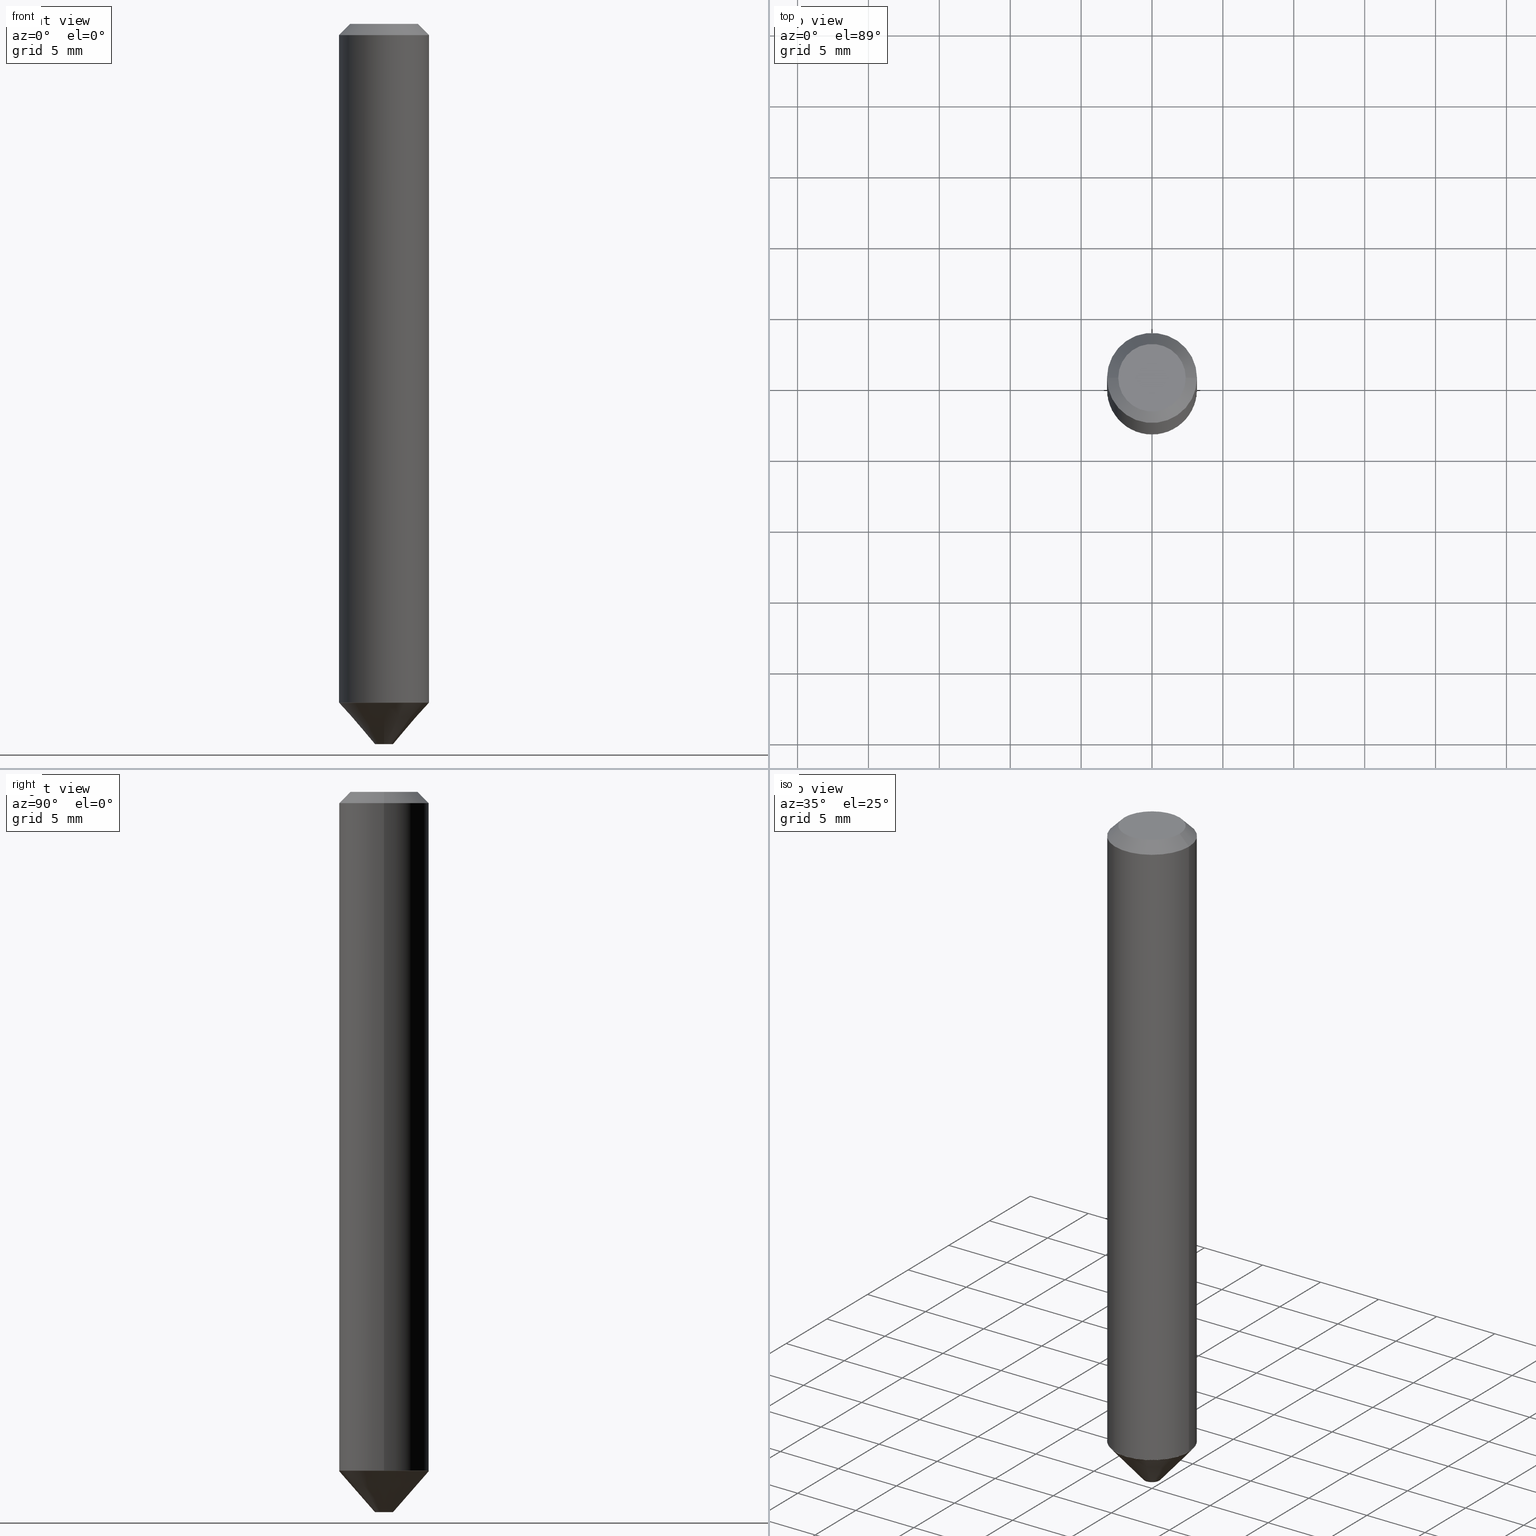
[diagram: canonical four-view strip — front | top / right | iso, engineering-drawing reading convention]
A machine part, canonical four-view strip (front | top / right | iso — engineering-drawing reading convention). The complete STEP part file that produces these views, byte-faithful:
ISO-10303-21;
HEADER;
FILE_DESCRIPTION (( 'STEP AP203' ),
    '1' );
FILE_NAME ('74155.STEP',
    '2025-06-20T12:14:34',
    ( '' ),
    ( '' ),
    'SwSTEP 2.0',
    'SolidWorks 2024',
    '' );
FILE_SCHEMA (( 'CONFIG_CONTROL_DESIGN' ));
ENDSEC;

DATA;
#1 = DIRECTION ( 'NONE',  ( 6.982962677686266711E-15, 1.000000000000000000, -4.388510833195594116E-15 ) ) ;
#2 = DIRECTION ( 'NONE',  ( -2.456799184199791679E-29, 3.475255592641091320E-15, 1.000000000000000000 ) ) ;
#3 = APPLICATION_CONTEXT ( 'configuration controlled 3d designs of mechanical parts and assemblies' ) ;
#4 = CARTESIAN_POINT ( 'NONE',  ( -8.558471252219543168E-16, -0.1245000000000068413, -1.885043996145981282 ) ) ;
#5 = CIRCLE ( 'NONE', #374, 0.1250000000000002498 ) ;
#6 = ORIENTED_EDGE ( 'NONE', *, *, #46, .F. ) ;
#7 = DIRECTION ( 'NONE',  ( -2.445468806185136597E-29, 3.491481338843145583E-15, 1.000000000000000000 ) ) ;
#8 = ORIENTED_EDGE ( 'NONE', *, *, #135, .F. ) ;
#9 = LINE ( 'NONE', #134, #316 ) ;
#10 = ORIENTED_EDGE ( 'NONE', *, *, #189, .F. ) ;
#11 =( NAMED_UNIT ( * ) SI_UNIT ( $, .STERADIAN. ) SOLID_ANGLE_UNIT ( ) );
#12 = CARTESIAN_POINT ( 'NONE',  ( -0.1245000000000004020, -5.694321002246567410E-15, -1.885043996145981282 ) ) ;
#13 = DIRECTION ( 'NONE',  ( -2.445468806185136877E-29, 3.491481338843145188E-15, 1.000000000000000000 ) ) ;
#14 = PERSON_AND_ORGANIZATION ( #416, #78 ) ;
#15 = VECTOR ( 'NONE', #203, 39.37007874015748143 ) ;
#16 = CARTESIAN_POINT ( 'NONE',  ( 4.609816290861572078E-29, -6.581595935442004523E-15, -1.885043996145981282 ) ) ;
#17 = DIRECTION ( 'NONE',  ( 2.456799184199791959E-29, -3.475255592641091320E-15, -1.000000000000000000 ) ) ;
#18 = DATE_TIME_ROLE ( 'creation_date' ) ;
#19 = DIRECTION ( 'NONE',  ( 1.000000000000000000, -6.982962677686264344E-15, 0.000000000000000000 ) ) ;
#20 = CARTESIAN_POINT ( 'NONE',  ( -8.728703347107393598E-16, -0.1250000000000068834, -1.885543996145981227 ) ) ;
#21 = CONICAL_SURFACE ( 'NONE', #208, 0.1250000000000003053, 0.7180921986036510329 ) ;
#22 = PERSON_AND_ORGANIZATION_ROLE ( 'classification_officer' ) ;
#23 = VERTEX_POINT ( 'NONE', #366 ) ;
#24 = AXIS2_PLACEMENT_3D ( 'NONE', #42, #17, #278 ) ;
#25 = CARTESIAN_POINT ( 'NONE',  ( -9.358861080966640236E-47, 1.336197326842803670E-32, 3.827021247335477232E-18 ) ) ;
#26 = CARTESIAN_POINT ( 'NONE',  ( 4.609816290861573199E-29, -6.581595935442006101E-15, -1.885043996145981948 ) ) ;
#27 = VECTOR ( 'NONE', #188, 39.37007874015748143 ) ;
#28 = PLANE ( 'NONE',  #200 ) ;
#29 = EDGE_CURVE ( 'NONE', #251, #230, #337, .T. ) ;
#30 = ORIENTED_EDGE ( 'NONE', *, *, #69, .F. ) ;
#31 = EDGE_LOOP ( 'NONE', ( #402, #120 ) ) ;
#32 = CARTESIAN_POINT ( 'NONE',  ( -4.679430540483320118E-47, 6.680986634214018350E-33, 1.913510623667738616E-18 ) ) ;
#33 = VERTEX_POINT ( 'NONE', #292 ) ;
#34 = DIRECTION ( 'NONE',  ( 6.982962677686265922E-15, 1.000000000000000000, -4.370956789862810105E-15 ) ) ;
#35 = APPLICATION_PROTOCOL_DEFINITION ( 'international standard', 'config_control_design', 1994, #311 ) ;
#36 = CONICAL_SURFACE ( 'NONE', #113, 0.1250000000000000278, 0.7853981633974450594 ) ;
#37 = DIRECTION ( 'NONE',  ( -2.445468806185136877E-29, 3.491481338843145188E-15, 1.000000000000000000 ) ) ;
#38 = ORIENTED_EDGE ( 'NONE', *, *, #128, .T. ) ;
#39 = PERSON_AND_ORGANIZATION_ROLE ( 'creator' ) ;
#40 = CARTESIAN_POINT ( 'NONE',  ( 0.1250000000000000278, -9.666710415602907432E-16, -0.03125000000000022898 ) ) ;
#41 = EDGE_CURVE ( 'NONE', #96, #251, #171, .T. ) ;
#42 = CARTESIAN_POINT ( 'NONE',  ( 4.609816290861573199E-29, -6.581595935442006101E-15, -1.885043996145981948 ) ) ;
#43 = ORIENTED_EDGE ( 'NONE', *, *, #69, .T. ) ;
#44 = APPROVAL_DATE_TIME ( #338, #51 ) ;
#45 = FACE_OUTER_BOUND ( 'NONE', #266, .T. ) ;
#46 = EDGE_CURVE ( 'NONE', #198, #315, #317, .T. ) ;
#47 = PRODUCT ( '74155', '74155', '', ( #267 ) ) ;
#48 = CARTESIAN_POINT ( 'NONE',  ( 0.000000000000000000, 0.000000000000000000, 0.000000000000000000 ) ) ;
#49 = LINE ( 'NONE', #20, #408 ) ;
#50 = UNCERTAINTY_MEASURE_WITH_UNIT (LENGTH_MEASURE( 1.000000000000000082E-05 ), #170, 'distance_accuracy_value', 'NONE');
#51 = APPROVAL ( #140, 'UNSPECIFIED' ) ;
#52 = PERSON_AND_ORGANIZATION ( #416, #78 ) ;
#53 = ORIENTED_EDGE ( 'NONE', *, *, #299, .F. ) ;
#54 = ORIENTED_EDGE ( 'NONE', *, *, #83, .F. ) ;
#55 = CIRCLE ( 'NONE', #228, 0.1245000000000002632 ) ;
#56 = CARTESIAN_POINT ( 'NONE',  ( 7.498156797101894294E-29, -2.445327936373528138E-15, -1.885043996145981504 ) ) ;
#57 = EDGE_LOOP ( 'NONE', ( #186, #300 ) ) ;
#58 = CARTESIAN_POINT ( 'NONE',  ( 4.609816290861572078E-29, -6.581595935442004523E-15, -1.885043996145981282 ) ) ;
#59 = AXIS2_PLACEMENT_3D ( 'NONE', #231, #406, #99 ) ;
#60 = EDGE_CURVE ( 'NONE', #361, #187, #398, .T. ) ;
#61 = PRODUCT_RELATED_PRODUCT_CATEGORY ( 'detail', '', ( #47 ) ) ;
#62 = APPROVAL_PERSON_ORGANIZATION ( #14, #51, #143 ) ;
#63 = ORIENTED_EDGE ( 'NONE', *, *, #41, .F. ) ;
#64 = LOCAL_TIME ( 8, 14, 34.00000000000000000, #274 ) ;
#65 = CIRCLE ( 'NONE', #90, 0.1250000000000000278 ) ;
#66 = ORIENTED_EDGE ( 'NONE', *, *, #211, .F. ) ;
#67 = LINE ( 'NONE', #283, #27 ) ;
#68 = ORIENTED_EDGE ( 'NONE', *, *, #272, .F. ) ;
#69 = EDGE_CURVE ( 'NONE', #23, #315, #268, .T. ) ;
#70 = CC_DESIGN_SECURITY_CLASSIFICATION ( #95, ( #245 ) ) ;
#71 = CARTESIAN_POINT ( 'NONE',  ( -8.575622497213981566E-16, -0.1250000000000069944, -1.885543996145981227 ) ) ;
#72 = ORIENTED_EDGE ( 'NONE', *, *, #205, .T. ) ;
#73 = DATE_AND_TIME ( #403, #159 ) ;
#74 = EDGE_CURVE ( 'NONE', #162, #315, #139, .T. ) ;
#75 = LINE ( 'NONE', #227, #119 ) ;
#76 = LINE ( 'NONE', #104, #295 ) ;
#77 = SHAPE_DEFINITION_REPRESENTATION ( #214, #346 ) ;
#78 = ORGANIZATION ( 'UNSPECIFIED', 'UNSPECIFIED', '' ) ;
#79 = CIRCLE ( 'NONE', #132, 0.1250000000000002498 ) ;
#80 = DIRECTION ( 'NONE',  ( 6.982962677686265133E-15, 1.000000000000000000, 0.000000000000000000 ) ) ;
#81 = CC_DESIGN_DATE_AND_TIME_ASSIGNMENT ( #118, #312, ( #95 ) ) ;
#82 = FACE_OUTER_BOUND ( 'NONE', #91, .T. ) ;
#83 = EDGE_CURVE ( 'NONE', #23, #285, #356, .T. ) ;
#84 = VECTOR ( 'NONE', #365, 39.37007874015748143 ) ;
#85 = ORIENTED_EDGE ( 'NONE', *, *, #265, .F. ) ;
#86 = DIRECTION ( 'NONE',  ( -2.445468806185136597E-29, 3.491481338843145583E-15, 1.000000000000000000 ) ) ;
#87 = VERTEX_POINT ( 'NONE', #307 ) ;
#88 = CARTESIAN_POINT ( 'NONE',  ( 4.609816290861573199E-29, -6.581595935442006101E-15, -1.885043996145981948 ) ) ;
#89 = FACE_OUTER_BOUND ( 'NONE', #284, .T. ) ;
#90 = AXIS2_PLACEMENT_3D ( 'NONE', #306, #378, #179 ) ;
#91 = EDGE_LOOP ( 'NONE', ( #370, #386, #255, #100 ) ) ;
#92 = DIRECTION ( 'NONE',  ( 1.000000000000000000, -6.982962677686265922E-15, 0.000000000000000000 ) ) ;
#93 = CC_DESIGN_PERSON_AND_ORGANIZATION_ASSIGNMENT ( #276, #247, ( #245 ) ) ;
#94 = ORIENTED_EDGE ( 'NONE', *, *, #182, .T. ) ;
#95 = SECURITY_CLASSIFICATION ( '', '', #242 ) ;
#96 = VERTEX_POINT ( 'NONE', #12 ) ;
#97 = APPLICATION_PROTOCOL_DEFINITION ( 'international standard', 'config_control_design', 1994, #3 ) ;
#98 = ORIENTED_EDGE ( 'NONE', *, *, #335, .T. ) ;
#99 = DIRECTION ( 'NONE',  ( 1.000000000000000000, -6.982962677686266711E-15, 4.876176775795935793E-29 ) ) ;
#100 = ORIENTED_EDGE ( 'NONE', *, *, #397, .F. ) ;
#101 = DIRECTION ( 'NONE',  ( 0.000000000000000000, 0.000000000000000000, 1.000000000000000000 ) ) ;
#102 = ADVANCED_FACE ( 'NONE', ( #275 ), #138, .T. ) ;
#103 = FACE_OUTER_BOUND ( 'NONE', #383, .T. ) ;
#104 = CARTESIAN_POINT ( 'NONE',  ( -0.1250000000000002498, -5.691671775072456998E-15, -1.884543996145982003 ) ) ;
#105 = FACE_OUTER_BOUND ( 'NONE', #201, .T. ) ;
#106 = CARTESIAN_POINT ( 'NONE',  ( 4.609816290861573199E-29, -6.581595935442006101E-15, -1.885043996145981948 ) ) ;
#107 = FACE_OUTER_BOUND ( 'NONE', #183, .T. ) ;
#108 = DIRECTION ( 'NONE',  ( 1.000000000000000000, -6.982962677686266711E-15, 4.875989565238656407E-29 ) ) ;
#109 = CLOSED_SHELL ( 'NONE', ( #150, #102, #240, #322, #308, #368, #314, #354 ) ) ;
#110 = ADVANCED_FACE ( 'NONE', ( #45 ), #185, .T. ) ;
#111 = CARTESIAN_POINT ( 'NONE',  ( 4.611044690453673152E-29, -6.583333563238326650E-15, -1.885543996145981671 ) ) ;
#112 = AXIS2_PLACEMENT_3D ( 'NONE', #269, #101, #239 ) ;
#113 = AXIS2_PLACEMENT_3D ( 'NONE', #415, #121, #389 ) ;
#114 = VECTOR ( 'NONE', #352, 39.37007874015748143 ) ;
#115 = DIMENSIONAL_EXPONENTS ( 1.000000000000000000, 0.000000000000000000, 0.000000000000000000, 0.000000000000000000, 0.000000000000000000, 0.000000000000000000, 0.000000000000000000 ) ;
#116 = DIRECTION ( 'NONE',  ( -0.7071067811868855246, 7.493145998871575317E-15, 0.7071067811862095098 ) ) ;
#117 = CIRCLE ( 'NONE', #385, 0.02500000000000041772 ) ;
#118 = DATE_AND_TIME ( #181, #344 ) ;
#119 = VECTOR ( 'NONE', #37, 39.37007874015748143 ) ;
#120 = ORIENTED_EDGE ( 'NONE', *, *, #83, .T. ) ;
#121 = DIRECTION ( 'NONE',  ( 2.445468806185136597E-29, -3.491481338843145583E-15, -1.000000000000000000 ) ) ;
#122 = ORIENTED_EDGE ( 'NONE', *, *, #182, .F. ) ;
#123 = DIRECTION ( 'NONE',  ( 2.456799184199791959E-29, -3.475255592641091320E-15, -1.000000000000000000 ) ) ;
#124 = CC_DESIGN_APPROVAL ( #343, ( #277 ) ) ;
#125 = ORIENTED_EDGE ( 'NONE', *, *, #189, .T. ) ;
#126 = DIRECTION ( 'NONE',  ( -2.445468806185136597E-29, 3.491481338843145583E-15, 1.000000000000000000 ) ) ;
#127 = CARTESIAN_POINT ( 'NONE',  ( 8.693788533719880578E-16, 0.1244999999999936990, -1.885043996145982392 ) ) ;
#128 = EDGE_CURVE ( 'NONE', #315, #198, #155, .T. ) ;
#129 = DIRECTION ( 'NONE',  ( 1.000000000000000000, -6.982962677686267499E-15, 0.000000000000000000 ) ) ;
#130 = CC_DESIGN_DATE_AND_TIME_ASSIGNMENT ( #73, #18, ( #277 ) ) ;
#131 = ORIENTED_EDGE ( 'NONE', *, *, #74, .T. ) ;
#132 = AXIS2_PLACEMENT_3D ( 'NONE', #339, #310, #19 ) ;
#133 = DIRECTION ( 'NONE',  ( 2.456799184199791959E-29, -3.475255592641091320E-15, -1.000000000000000000 ) ) ;
#134 = CARTESIAN_POINT ( 'NONE',  ( -0.1250000000000000278, 7.637615428719344354E-16, -0.03125000000000022898 ) ) ;
#135 = EDGE_CURVE ( 'NONE', #230, #361, #79, .T. ) ;
#136 = ORIENTED_EDGE ( 'NONE', *, *, #272, .T. ) ;
#137 = PERSON_AND_ORGANIZATION ( #416, #78 ) ;
#138 = CYLINDRICAL_SURFACE ( 'NONE', #331, 0.1250000000000001388 ) ;
#139 = LINE ( 'NONE', #127, #114 ) ;
#140 = APPROVAL_STATUS ( 'not_yet_approved' ) ;
#141 = CARTESIAN_POINT ( 'NONE',  ( 7.642090019328607041E-31, -1.091087918388490883E-16, -0.03125000000000022898 ) ) ;
#142 = COORDINATED_UNIVERSAL_TIME_OFFSET ( 5, 0, .BEHIND. ) ;
#143 = APPROVAL_ROLE ( '' ) ;
#144 = DIRECTION ( 'NONE',  ( 6.982962677686266711E-15, 1.000000000000000000, -4.388510833195594116E-15 ) ) ;
#145 = APPROVAL ( #152, 'UNSPECIFIED' ) ;
#146 = CARTESIAN_POINT ( 'NONE',  ( 4.890937612370273194E-29, -6.982962677686291165E-15, -2.000000000000000000 ) ) ;
#147 = CONICAL_SURFACE ( 'NONE', #353, 0.1250000000000002498, 0.7853981633979263410 ) ;
#148 = CARTESIAN_POINT ( 'NONE',  ( 8.693788533719880578E-16, 0.1244999999999936990, -1.885043996145982392 ) ) ;
#149 = AXIS2_PLACEMENT_3D ( 'NONE', #146, #237, #177 ) ;
#150 = ADVANCED_FACE ( 'NONE', ( #82 ), #411, .T. ) ;
#151 = ADVANCED_FACE ( 'NONE', ( #107 ), #21, .T. ) ;
#152 = APPROVAL_STATUS ( 'not_yet_approved' ) ;
#153 = AXIS2_PLACEMENT_3D ( 'NONE', #288, #161, #1 ) ;
#154 = CIRCLE ( 'NONE', #257, 0.1245000000000004020 ) ;
#155 = CIRCLE ( 'NONE', #209, 0.1250000000000003053 ) ;
#156 = LOCAL_TIME ( 8, 14, 34.00000000000000000, #212 ) ;
#157 = ORIENTED_EDGE ( 'NONE', *, *, #205, .F. ) ;
#158 = ADVANCED_FACE ( 'NONE', ( #348 ), #341, .F. ) ;
#159 = LOCAL_TIME ( 8, 14, 34.00000000000000000, #301 ) ;
#160 = ORIENTED_EDGE ( 'NONE', *, *, #253, .F. ) ;
#161 = DIRECTION ( 'NONE',  ( 2.456799184199791959E-29, -3.475255592641091320E-15, -1.000000000000000000 ) ) ;
#162 = VERTEX_POINT ( 'NONE', #148 ) ;
#163 = DIRECTION ( 'NONE',  ( 2.438088387897960049E-29, -3.491481338843145188E-15, -1.000000000000000000 ) ) ;
#164 = CARTESIAN_POINT ( 'NONE',  ( 0.1250000000000002498, -7.452720529483370303E-15, -1.884543996145982003 ) ) ;
#165 = DIRECTION ( 'NONE',  ( -2.445468806185136597E-29, 3.491481338843145583E-15, 1.000000000000000000 ) ) ;
#166 = AXIS2_PLACEMENT_3D ( 'NONE', #111, #241, #233 ) ;
#167 = CARTESIAN_POINT ( 'NONE',  ( -0.1250000000000001388, 8.881784197001262184E-16, -6.148668862818638533E-30 ) ) ;
#168 = ADVANCED_FACE ( 'NONE', ( #375 ), #355, .T. ) ;
#169 = CARTESIAN_POINT ( 'NONE',  ( 4.611044690453673152E-29, -6.583333563238326650E-15, -1.885543996145981671 ) ) ;
#170 =( CONVERSION_BASED_UNIT ( 'INCH', #176 ) LENGTH_UNIT ( ) NAMED_UNIT ( #115 ) );
#171 = CIRCLE ( 'NONE', #246, 0.1245000000000004020 ) ;
#172 = DIRECTION ( 'NONE',  ( 6.982962677686265922E-15, 1.000000000000000000, -4.370956789862810105E-15 ) ) ;
#173 = ORIENTED_EDGE ( 'NONE', *, *, #342, .F. ) ;
#174 = PERSON_AND_ORGANIZATION ( #416, #78 ) ;
#175 = CARTESIAN_POINT ( 'NONE',  ( 4.611044690453673152E-29, -6.583333563238326650E-15, -1.885543996145981671 ) ) ;
#176 = LENGTH_MEASURE_WITH_UNIT ( LENGTH_MEASURE( 0.02539999999999999897 ), #326 );
#177 = DIRECTION ( 'NONE',  ( -6.982962677686265922E-15, -1.000000000000000000, 3.475255592641091320E-15 ) ) ;
#178 = DIRECTION ( 'NONE',  ( 2.456799184199791959E-29, -3.475255592641091320E-15, -1.000000000000000000 ) ) ;
#179 = DIRECTION ( 'NONE',  ( 1.000000000000000000, -6.982962677686265922E-15, 0.000000000000000000 ) ) ;
#180 = CALENDAR_DATE ( 2025, 20, 6 ) ;
#181 = CALENDAR_DATE ( 2025, 20, 6 ) ;
#182 = EDGE_CURVE ( 'NONE', #96, #361, #76, .T. ) ;
#183 = EDGE_LOOP ( 'NONE', ( #30, #217, #125, #289 ) ) ;
#184 = DIRECTION ( 'NONE',  ( -6.982962677686265922E-15, -1.000000000000000000, 3.475255592641091320E-15 ) ) ;
#185 = CONICAL_SURFACE ( 'NONE', #24, 0.1245000000000002632, 0.7853981633975849475 ) ;
#186 = ORIENTED_EDGE ( 'NONE', *, *, #384, .T. ) ;
#187 = VERTEX_POINT ( 'NONE', #207 ) ;
#188 = DIRECTION ( 'NONE',  ( -4.851104656541626918E-15, -0.7071067811866466046, -0.7071067811864484298 ) ) ;
#189 = EDGE_CURVE ( 'NONE', #285, #198, #49, .T. ) ;
#190 = ORIENTED_EDGE ( 'NONE', *, *, #60, .F. ) ;
#191 = MANIFOLD_SOLID_BREP ( 'Body-Move/Copy2[2]', #109 ) ;
#192 = AXIS2_PLACEMENT_3D ( 'NONE', #388, #7, #363 ) ;
#193 = ORIENTED_EDGE ( 'NONE', *, *, #29, .T. ) ;
#194 = FACE_OUTER_BOUND ( 'NONE', #57, .T. ) ;
#195 = EDGE_LOOP ( 'NONE', ( #297, #53 ) ) ;
#196 = APPROVAL_STATUS ( 'not_yet_approved' ) ;
#197 = AXIS2_PLACEMENT_3D ( 'NONE', #26, #381, #144 ) ;
#198 = VERTEX_POINT ( 'NONE', #71 ) ;
#199 = PERSON_AND_ORGANIZATION_ROLE ( 'design_owner' ) ;
#200 = AXIS2_PLACEMENT_3D ( 'NONE', #88, #2, #184 ) ;
#201 = EDGE_LOOP ( 'NONE', ( #190, #72, #393, #173 ) ) ;
#202 = CARTESIAN_POINT ( 'NONE',  ( 4.611044690453673152E-29, -6.583333563238326650E-15, -1.885543996145981671 ) ) ;
#203 = DIRECTION ( 'NONE',  ( 0.7071067811868855246, -2.468850131085797074E-15, 0.7071067811862095098 ) ) ;
#204 = CALENDAR_DATE ( 2025, 20, 6 ) ;
#205 = EDGE_CURVE ( 'NONE', #361, #230, #5, .T. ) ;
#206 = DIRECTION ( 'NONE',  ( -0.7071067811865452413, 2.468850131082233000E-15, -0.7071067811865497932 ) ) ;
#207 = CARTESIAN_POINT ( 'NONE',  ( -0.1250000000000000278, -2.456301073605589250E-15, -0.03125000000000022898 ) ) ;
#208 = AXIS2_PLACEMENT_3D ( 'NONE', #175, #302, #213 ) ;
#209 = AXIS2_PLACEMENT_3D ( 'NONE', #202, #178, #172 ) ;
#210 = AXIS2_PLACEMENT_3D ( 'NONE', #262, #391, #92 ) ;
#211 = EDGE_CURVE ( 'NONE', #33, #187, #65, .T. ) ;
#212 = COORDINATED_UNIVERSAL_TIME_OFFSET ( 5, 0, .BEHIND. ) ;
#213 = DIRECTION ( 'NONE',  ( -6.982962677686265922E-15, -1.000000000000000000, 4.370956789862810105E-15 ) ) ;
#214 = PRODUCT_DEFINITION_SHAPE ( 'NONE', 'NONE',  #277 ) ;
#215 = APPROVAL_PERSON_ORGANIZATION ( #349, #145, #351 ) ;
#216 = CC_DESIGN_PERSON_AND_ORGANIZATION_ASSIGNMENT ( #174, #305, ( #245 ) ) ;
#217 = ORIENTED_EDGE ( 'NONE', *, *, #303, .F. ) ;
#218 = VECTOR ( 'NONE', #13, 39.37007874015748143 ) ;
#219 = ORIENTED_EDGE ( 'NONE', *, *, #384, .F. ) ;
#220 = CARTESIAN_POINT ( 'NONE',  ( 4.892240107348993741E-29, -6.981097430743353343E-15, -2.000000000000000000 ) ) ;
#221 = FACE_OUTER_BOUND ( 'NONE', #195, .T. ) ;
#222 = EDGE_LOOP ( 'NONE', ( #98, #94, #8, #232 ) ) ;
#223 = ORIENTED_EDGE ( 'NONE', *, *, #128, .F. ) ;
#224 = CARTESIAN_POINT ( 'NONE',  ( 4.892240107348993741E-29, -6.981097430743353343E-15, -2.000000000000000000 ) ) ;
#225 = CC_DESIGN_PERSON_AND_ORGANIZATION_ASSIGNMENT ( #137, #199, ( #47 ) ) ;
#226 = DIRECTION ( 'NONE',  ( -2.445468806185136597E-29, 3.491481338843145583E-15, 1.000000000000000000 ) ) ;
#227 = CARTESIAN_POINT ( 'NONE',  ( 0.1250000000000001388, -8.728703347107843249E-16, 6.095220969744926748E-30 ) ) ;
#228 = AXIS2_PLACEMENT_3D ( 'NONE', #106, #235, #373 ) ;
#229 = DIRECTION ( 'NONE',  ( 2.456799184199791959E-29, -3.475255592641091320E-15, -1.000000000000000000 ) ) ;
#230 = VERTEX_POINT ( 'NONE', #271 ) ;
#231 = CARTESIAN_POINT ( 'NONE',  ( 0.000000000000000000, 0.000000000000000000, 0.000000000000000000 ) ) ;
#232 = ORIENTED_EDGE ( 'NONE', *, *, #29, .F. ) ;
#233 = DIRECTION ( 'NONE',  ( -6.982962677686265922E-15, -1.000000000000000000, 4.370956789862810105E-15 ) ) ;
#234 = APPROVAL_ROLE ( '' ) ;
#235 = DIRECTION ( 'NONE',  ( 2.456799184199791959E-29, -3.475255592641091320E-15, -1.000000000000000000 ) ) ;
#236 = CONICAL_SURFACE ( 'NONE', #192, 0.1250000000000002498, 0.7853981633979263410 ) ;
#237 = DIRECTION ( 'NONE',  ( -2.456799184199791679E-29, 3.475255592641091320E-15, 1.000000000000000000 ) ) ;
#238 = DESIGN_CONTEXT ( 'detailed design', #311, 'design' ) ;
#239 = DIRECTION ( 'NONE',  ( 1.000000000000000000, 0.000000000000000000, 0.000000000000000000 ) ) ;
#240 = ADVANCED_FACE ( 'NONE', ( #401 ), #147, .T. ) ;
#241 = DIRECTION ( 'NONE',  ( -2.456799184199791959E-29, 3.475255592641091320E-15, 1.000000000000000000 ) ) ;
#242 = SECURITY_CLASSIFICATION_LEVEL ( 'unclassified' ) ;
#243 = VECTOR ( 'NONE', #273, 39.37007874015748143 ) ;
#244 = DIRECTION ( 'NONE',  ( 1.000000000000000000, -6.982962677686264344E-15, 0.000000000000000000 ) ) ;
#245 = PRODUCT_DEFINITION_FORMATION_WITH_SPECIFIED_SOURCE ( 'ANY', '', #47, .NOT_KNOWN. ) ;
#246 = AXIS2_PLACEMENT_3D ( 'NONE', #16, #226, #364 ) ;
#247 = PERSON_AND_ORGANIZATION_ROLE ( 'design_supplier' ) ;
#248 = AXIS2_PLACEMENT_3D ( 'NONE', #25, #126, #256 ) ;
#249 = ADVANCED_FACE ( 'NONE', ( #103 ), #327, .T. ) ;
#250 = CLOSED_SHELL ( 'NONE', ( #168, #110, #249, #309, #158, #151 ) ) ;
#251 = VERTEX_POINT ( 'NONE', #298 ) ;
#252 = CARTESIAN_POINT ( 'NONE',  ( 8.728703347108306705E-16, 0.1249999999999936162, -1.885543996145982337 ) ) ;
#253 = EDGE_CURVE ( 'NONE', #87, #33, #334, .T. ) ;
#254 = LOCAL_TIME ( 8, 14, 34.00000000000000000, #142 ) ;
#255 = ORIENTED_EDGE ( 'NONE', *, *, #211, .T. ) ;
#256 = DIRECTION ( 'NONE',  ( 1.000000000000000000, -6.982962677686266711E-15, 4.875989565238656407E-29 ) ) ;
#257 = AXIS2_PLACEMENT_3D ( 'NONE', #58, #86, #129 ) ;
#258 = EDGE_CURVE ( 'NONE', #162, #325, #55, .T. ) ;
#259 = ORIENTED_EDGE ( 'NONE', *, *, #41, .T. ) ;
#260 = FACE_OUTER_BOUND ( 'NONE', #329, .T. ) ;
#261 = ORIENTED_EDGE ( 'NONE', *, *, #335, .F. ) ;
#262 = CARTESIAN_POINT ( 'NONE',  ( 7.642090019328607041E-31, -1.091087918388490883E-16, -0.03125000000000022898 ) ) ;
#263 = ORIENTED_EDGE ( 'NONE', *, *, #74, .F. ) ;
#264 = CARTESIAN_POINT ( 'NONE',  ( -0.1250000000000002498, -5.691671775072456998E-15, -1.884543996145982003 ) ) ;
#265 = EDGE_CURVE ( 'NONE', #230, #33, #75, .T. ) ;
#266 = EDGE_LOOP ( 'NONE', ( #414, #136, #223, #263 ) ) ;
#267 = MECHANICAL_CONTEXT ( 'NONE', #3, 'mechanical' ) ;
#268 = LINE ( 'NONE', #399, #243 ) ;
#269 = CARTESIAN_POINT ( 'NONE',  ( 0.000000000000000000, 0.000000000000000000, 0.000000000000000000 ) ) ;
#270 = CIRCLE ( 'NONE', #248, 0.09374999999999998612 ) ;
#271 = CARTESIAN_POINT ( 'NONE',  ( 0.1250000000000002498, -7.452720529483370303E-15, -1.884543996145982003 ) ) ;
#272 = EDGE_CURVE ( 'NONE', #325, #198, #67, .T. ) ;
#273 = DIRECTION ( 'NONE',  ( 4.675010081021729684E-15, 0.6579491768388420203, 0.7530623352001414306 ) ) ;
#274 = COORDINATED_UNIVERSAL_TIME_OFFSET ( 5, 0, .BEHIND. ) ;
#275 = FACE_OUTER_BOUND ( 'NONE', #313, .T. ) ;
#276 = PERSON_AND_ORGANIZATION ( #416, #78 ) ;
#277 = PRODUCT_DEFINITION ( 'UNKNOWN', '', #245, #238 ) ;
#278 = DIRECTION ( 'NONE',  ( 6.982962677686266711E-15, 1.000000000000000000, -4.388510833195594116E-15 ) ) ;
#279 = CYLINDRICAL_SURFACE ( 'NONE', #59, 0.1250000000000001388 ) ;
#280 = DIRECTION ( 'NONE',  ( 2.445468806185136597E-29, -3.491481338843145583E-15, -1.000000000000000000 ) ) ;
#281 = APPROVAL_PERSON_ORGANIZATION ( #400, #343, #234 ) ;
#282 = DIRECTION ( 'NONE',  ( -4.594434545680034351E-15, -0.6579491768388366912, 0.7530623352001460935 ) ) ;
#283 = CARTESIAN_POINT ( 'NONE',  ( -8.541320007225113645E-16, -0.1245000000000068413, -1.885043996145981282 ) ) ;
#284 = EDGE_LOOP ( 'NONE', ( #261, #63 ) ) ;
#285 = VERTEX_POINT ( 'NONE', #286 ) ;
#286 = CARTESIAN_POINT ( 'NONE',  ( -5.237222008264251368E-16, -0.02500000000000739825, -2.000000000000000000 ) ) ;
#287 = ORIENTED_EDGE ( 'NONE', *, *, #60, .T. ) ;
#288 = CARTESIAN_POINT ( 'NONE',  ( 4.609816290861573199E-29, -6.581595935442006101E-15, -1.885043996145981948 ) ) ;
#289 = ORIENTED_EDGE ( 'NONE', *, *, #46, .T. ) ;
#290 = DIRECTION ( 'NONE',  ( -1.000000000000000000, 6.982962677686265922E-15, -4.876176775795935793E-29 ) ) ;
#291 = EDGE_CURVE ( 'NONE', #87, #304, #270, .T. ) ;
#292 = CARTESIAN_POINT ( 'NONE',  ( 0.1250000000000000278, -9.819791265496326367E-16, -0.03125000000000022898 ) ) ;
#293 = CARTESIAN_POINT ( 'NONE',  ( -9.358861080966640236E-47, 1.336197326842803670E-32, 3.827021247335477232E-18 ) ) ;
#294 = AXIS2_PLACEMENT_3D ( 'NONE', #141, #280, #407 ) ;
#295 = VECTOR ( 'NONE', #116, 39.37007874015748143 ) ;
#296 = AXIS2_PLACEMENT_3D ( 'NONE', #169, #133, #34 ) ;
#297 = ORIENTED_EDGE ( 'NONE', *, *, #258, .F. ) ;
#298 = CARTESIAN_POINT ( 'NONE',  ( 0.1245000000000004020, -7.450974788813948010E-15, -1.885043996145981282 ) ) ;
#299 = EDGE_CURVE ( 'NONE', #325, #162, #358, .T. ) ;
#300 = ORIENTED_EDGE ( 'NONE', *, *, #291, .T. ) ;
#301 = COORDINATED_UNIVERSAL_TIME_OFFSET ( 5, 0, .BEHIND. ) ;
#302 = DIRECTION ( 'NONE',  ( -2.456799184199791959E-29, 3.475255592641091320E-15, 1.000000000000000000 ) ) ;
#303 = EDGE_CURVE ( 'NONE', #285, #23, #117, .T. ) ;
#304 = VERTEX_POINT ( 'NONE', #394 ) ;
#305 = PERSON_AND_ORGANIZATION_ROLE ( 'creator' ) ;
#306 = CARTESIAN_POINT ( 'NONE',  ( 7.642090019328607041E-31, -1.091087918388490883E-16, -0.03125000000000022898 ) ) ;
#307 = CARTESIAN_POINT ( 'NONE',  ( 0.09374999999999998612, -8.049213644256858150E-16, 3.827021247340580176E-18 ) ) ;
#308 = ADVANCED_FACE ( 'NONE', ( #318 ), #236, .T. ) ;
#309 = ADVANCED_FACE ( 'NONE', ( #221 ), #28, .T. ) ;
#310 = DIRECTION ( 'NONE',  ( -2.445468806185136597E-29, 3.491481338843145583E-15, 1.000000000000000000 ) ) ;
#311 = APPLICATION_CONTEXT ( 'configuration controlled 3d designs of mechanical parts and assemblies' ) ;
#312 = DATE_TIME_ROLE ( 'classification_date' ) ;
#313 = EDGE_LOOP ( 'NONE', ( #323, #287, #66, #85 ) ) ;
#314 = ADVANCED_FACE ( 'NONE', ( #260 ), #36, .T. ) ;
#315 = VERTEX_POINT ( 'NONE', #252 ) ;
#316 = VECTOR ( 'NONE', #206, 39.37007874015748143 ) ;
#317 = CIRCLE ( 'NONE', #296, 0.1250000000000003053 ) ;
#318 = FACE_OUTER_BOUND ( 'NONE', #362, .T. ) ;
#319 = ORIENTED_EDGE ( 'NONE', *, *, #299, .T. ) ;
#320 = DIRECTION ( 'NONE',  ( -1.000000000000000000, 6.982962677686265922E-15, -4.876176775795935793E-29 ) ) ;
#321 = AXIS2_PLACEMENT_3D ( 'NONE', #293, #165, #108 ) ;
#322 = ADVANCED_FACE ( 'NONE', ( #89 ), #360, .T. ) ;
#323 = ORIENTED_EDGE ( 'NONE', *, *, #135, .T. ) ;
#324 = PLANE ( 'NONE',  #410 ) ;
#325 = VERTEX_POINT ( 'NONE', #4 ) ;
#326 =( LENGTH_UNIT ( ) NAMED_UNIT ( * ) SI_UNIT ( $, .METRE. ) );
#327 = CONICAL_SURFACE ( 'NONE', #197, 0.1245000000000002632, 0.7853981633975849475 ) ;
#328 = MANIFOLD_SOLID_BREP ( 'Body-Move/Copy2[1]', #250 ) ;
#329 = EDGE_LOOP ( 'NONE', ( #160, #219, #332, #359 ) ) ;
#330 =( NAMED_UNIT ( * ) PLANE_ANGLE_UNIT ( ) SI_UNIT ( $, .RADIAN. ) );
#331 = AXIS2_PLACEMENT_3D ( 'NONE', #48, #347, #409 ) ;
#332 = ORIENTED_EDGE ( 'NONE', *, *, #397, .T. ) ;
#333 = APPROVAL_DATE_TIME ( #340, #343 ) ;
#334 = LINE ( 'NONE', #40, #84 ) ;
#335 = EDGE_CURVE ( 'NONE', #251, #96, #154, .T. ) ;
#336 = CARTESIAN_POINT ( 'NONE',  ( 4.608593556458481518E-29, -6.579850194772584597E-15, -1.884543996145982003 ) ) ;
#337 = LINE ( 'NONE', #164, #15 ) ;
#338 = DATE_AND_TIME ( #204, #64 ) ;
#339 = CARTESIAN_POINT ( 'NONE',  ( 4.608593556458481518E-29, -6.579850194772584597E-15, -1.884543996145982003 ) ) ;
#340 = DATE_AND_TIME ( #367, #254 ) ;
#341 = PLANE ( 'NONE',  #149 ) ;
#342 = EDGE_CURVE ( 'NONE', #187, #33, #404, .T. ) ;
#343 = APPROVAL ( #196, 'UNSPECIFIED' ) ;
#344 = LOCAL_TIME ( 8, 14, 34.00000000000000000, #376 ) ;
#345 = DATE_AND_TIME ( #180, #156 ) ;
#346 = ADVANCED_BREP_SHAPE_REPRESENTATION ( '74155', ( #328, #191, #112 ), #369 ) ;
#347 = DIRECTION ( 'NONE',  ( -2.445468806185136597E-29, 3.491481338843145583E-15, 1.000000000000000000 ) ) ;
#348 = FACE_OUTER_BOUND ( 'NONE', #31, .T. ) ;
#349 = PERSON_AND_ORGANIZATION ( #416, #78 ) ;
#350 = CIRCLE ( 'NONE', #321, 0.09374999999999998612 ) ;
#351 = APPROVAL_ROLE ( '' ) ;
#352 = DIRECTION ( 'NONE',  ( 4.937700262165222518E-15, 0.7071067811866417196, -0.7071067811864533148 ) ) ;
#353 = AXIS2_PLACEMENT_3D ( 'NONE', #336, #379, #412 ) ;
#354 = ADVANCED_FACE ( 'NONE', ( #194 ), #324, .F. ) ;
#355 = CONICAL_SURFACE ( 'NONE', #166, 0.1250000000000003053, 0.7180921986036510329 ) ;
#356 = CIRCLE ( 'NONE', #396, 0.02500000000000041772 ) ;
#357 = DIRECTION ( 'NONE',  ( 6.982962677686265133E-15, 1.000000000000000000, 0.000000000000000000 ) ) ;
#358 = CIRCLE ( 'NONE', #153, 0.1245000000000002632 ) ;
#359 = ORIENTED_EDGE ( 'NONE', *, *, #342, .T. ) ;
#360 = PLANE ( 'NONE',  #395 ) ;
#361 = VERTEX_POINT ( 'NONE', #264 ) ;
#362 = EDGE_LOOP ( 'NONE', ( #122, #259, #193, #157 ) ) ;
#363 = DIRECTION ( 'NONE',  ( 1.000000000000000000, -6.982962677686264344E-15, 0.000000000000000000 ) ) ;
#364 = DIRECTION ( 'NONE',  ( 1.000000000000000000, -6.982962677686267499E-15, 0.000000000000000000 ) ) ;
#365 = DIRECTION ( 'NONE',  ( 0.7071067811865452413, -7.319954787623248157E-15, -0.7071067811865497932 ) ) ;
#366 = CARTESIAN_POINT ( 'NONE',  ( 5.329070518201253110E-16, 0.02499999999999344066, -2.000000000000000000 ) ) ;
#367 = CALENDAR_DATE ( 2025, 20, 6 ) ;
#368 = ADVANCED_FACE ( 'NONE', ( #105 ), #279, .T. ) ;
#369 =( GEOMETRIC_REPRESENTATION_CONTEXT ( 3 ) GLOBAL_UNCERTAINTY_ASSIGNED_CONTEXT ( ( #50 ) ) GLOBAL_UNIT_ASSIGNED_CONTEXT ( ( #170, #330, #11 ) ) REPRESENTATION_CONTEXT ( 'NONE', 'WORKASPACE' ) );
#370 = ORIENTED_EDGE ( 'NONE', *, *, #291, .F. ) ;
#371 = PERSON_AND_ORGANIZATION ( #416, #78 ) ;
#372 = DIRECTION ( 'NONE',  ( -2.445468806185136597E-29, 3.491481338843145583E-15, 1.000000000000000000 ) ) ;
#373 = DIRECTION ( 'NONE',  ( 6.982962677686266711E-15, 1.000000000000000000, -4.388510833195594116E-15 ) ) ;
#374 = AXIS2_PLACEMENT_3D ( 'NONE', #405, #372, #244 ) ;
#375 = FACE_OUTER_BOUND ( 'NONE', #390, .T. ) ;
#376 = COORDINATED_UNIVERSAL_TIME_OFFSET ( 5, 0, .BEHIND. ) ;
#377 = CC_DESIGN_APPROVAL ( #51, ( #245 ) ) ;
#378 = DIRECTION ( 'NONE',  ( -2.445468806185136597E-29, 3.491481338843145583E-15, 1.000000000000000000 ) ) ;
#379 = DIRECTION ( 'NONE',  ( -2.445468806185136597E-29, 3.491481338843145583E-15, 1.000000000000000000 ) ) ;
#380 = APPROVAL_DATE_TIME ( #345, #145 ) ;
#381 = DIRECTION ( 'NONE',  ( 2.456799184199791959E-29, -3.475255592641091320E-15, -1.000000000000000000 ) ) ;
#382 = CC_DESIGN_APPROVAL ( #145, ( #95 ) ) ;
#383 = EDGE_LOOP ( 'NONE', ( #68, #319, #131, #6 ) ) ;
#384 = EDGE_CURVE ( 'NONE', #304, #87, #350, .T. ) ;
#385 = AXIS2_PLACEMENT_3D ( 'NONE', #220, #123, #357 ) ;
#386 = ORIENTED_EDGE ( 'NONE', *, *, #253, .T. ) ;
#387 = DIRECTION ( 'NONE',  ( 2.438088387897960049E-29, -3.491481338843145188E-15, -1.000000000000000000 ) ) ;
#388 = CARTESIAN_POINT ( 'NONE',  ( 4.608593556458481518E-29, -6.579850194772584597E-15, -1.884543996145982003 ) ) ;
#389 = DIRECTION ( 'NONE',  ( -1.000000000000000000, 6.982962677686265922E-15, 0.000000000000000000 ) ) ;
#390 = EDGE_LOOP ( 'NONE', ( #54, #43, #38, #10 ) ) ;
#391 = DIRECTION ( 'NONE',  ( -2.445468806185136597E-29, 3.491481338843145583E-15, 1.000000000000000000 ) ) ;
#392 = CC_DESIGN_PERSON_AND_ORGANIZATION_ASSIGNMENT ( #371, #39, ( #277 ) ) ;
#393 = ORIENTED_EDGE ( 'NONE', *, *, #265, .T. ) ;
#394 = CARTESIAN_POINT ( 'NONE',  ( -0.09374999999999998612, 7.092071469525108711E-16, 3.827021247330707859E-18 ) ) ;
#395 = AXIS2_PLACEMENT_3D ( 'NONE', #56, #387, #320 ) ;
#396 = AXIS2_PLACEMENT_3D ( 'NONE', #224, #229, #80 ) ;
#397 = EDGE_CURVE ( 'NONE', #304, #187, #9, .T. ) ;
#398 = LINE ( 'NONE', #167, #218 ) ;
#399 = CARTESIAN_POINT ( 'NONE',  ( 8.881784197001733529E-16, 0.1249999999999937134, -1.885543996145982337 ) ) ;
#400 = PERSON_AND_ORGANIZATION ( #416, #78 ) ;
#401 = FACE_OUTER_BOUND ( 'NONE', #222, .T. ) ;
#402 = ORIENTED_EDGE ( 'NONE', *, *, #303, .T. ) ;
#403 = CALENDAR_DATE ( 2025, 20, 6 ) ;
#404 = CIRCLE ( 'NONE', #210, 0.1250000000000000278 ) ;
#405 = CARTESIAN_POINT ( 'NONE',  ( 4.608593556458481518E-29, -6.579850194772584597E-15, -1.884543996145982003 ) ) ;
#406 = DIRECTION ( 'NONE',  ( -2.445468806185136597E-29, 3.491481338843145583E-15, 1.000000000000000000 ) ) ;
#407 = DIRECTION ( 'NONE',  ( -1.000000000000000000, 6.982962677686265922E-15, 0.000000000000000000 ) ) ;
#408 = VECTOR ( 'NONE', #282, 39.37007874015748143 ) ;
#409 = DIRECTION ( 'NONE',  ( 1.000000000000000000, -6.982962677686266711E-15, 4.876176775795935793E-29 ) ) ;
#410 = AXIS2_PLACEMENT_3D ( 'NONE', #32, #163, #290 ) ;
#411 = CONICAL_SURFACE ( 'NONE', #294, 0.1250000000000000278, 0.7853981633974450594 ) ;
#412 = DIRECTION ( 'NONE',  ( 1.000000000000000000, -6.982962677686264344E-15, 0.000000000000000000 ) ) ;
#413 = CC_DESIGN_PERSON_AND_ORGANIZATION_ASSIGNMENT ( #52, #22, ( #95 ) ) ;
#414 = ORIENTED_EDGE ( 'NONE', *, *, #258, .T. ) ;
#415 = CARTESIAN_POINT ( 'NONE',  ( 7.642090019328607041E-31, -1.091087918388490883E-16, -0.03125000000000022898 ) ) ;
#416 = PERSON ( 'UNSPECIFIED', 'UNSPECIFIED', 'UNSPECIFIED', ('UNSPECIFIED'), ('UNSPECIFIED'), ('UNSPECIFIED') ) ;
ENDSEC;
END-ISO-10303-21;
